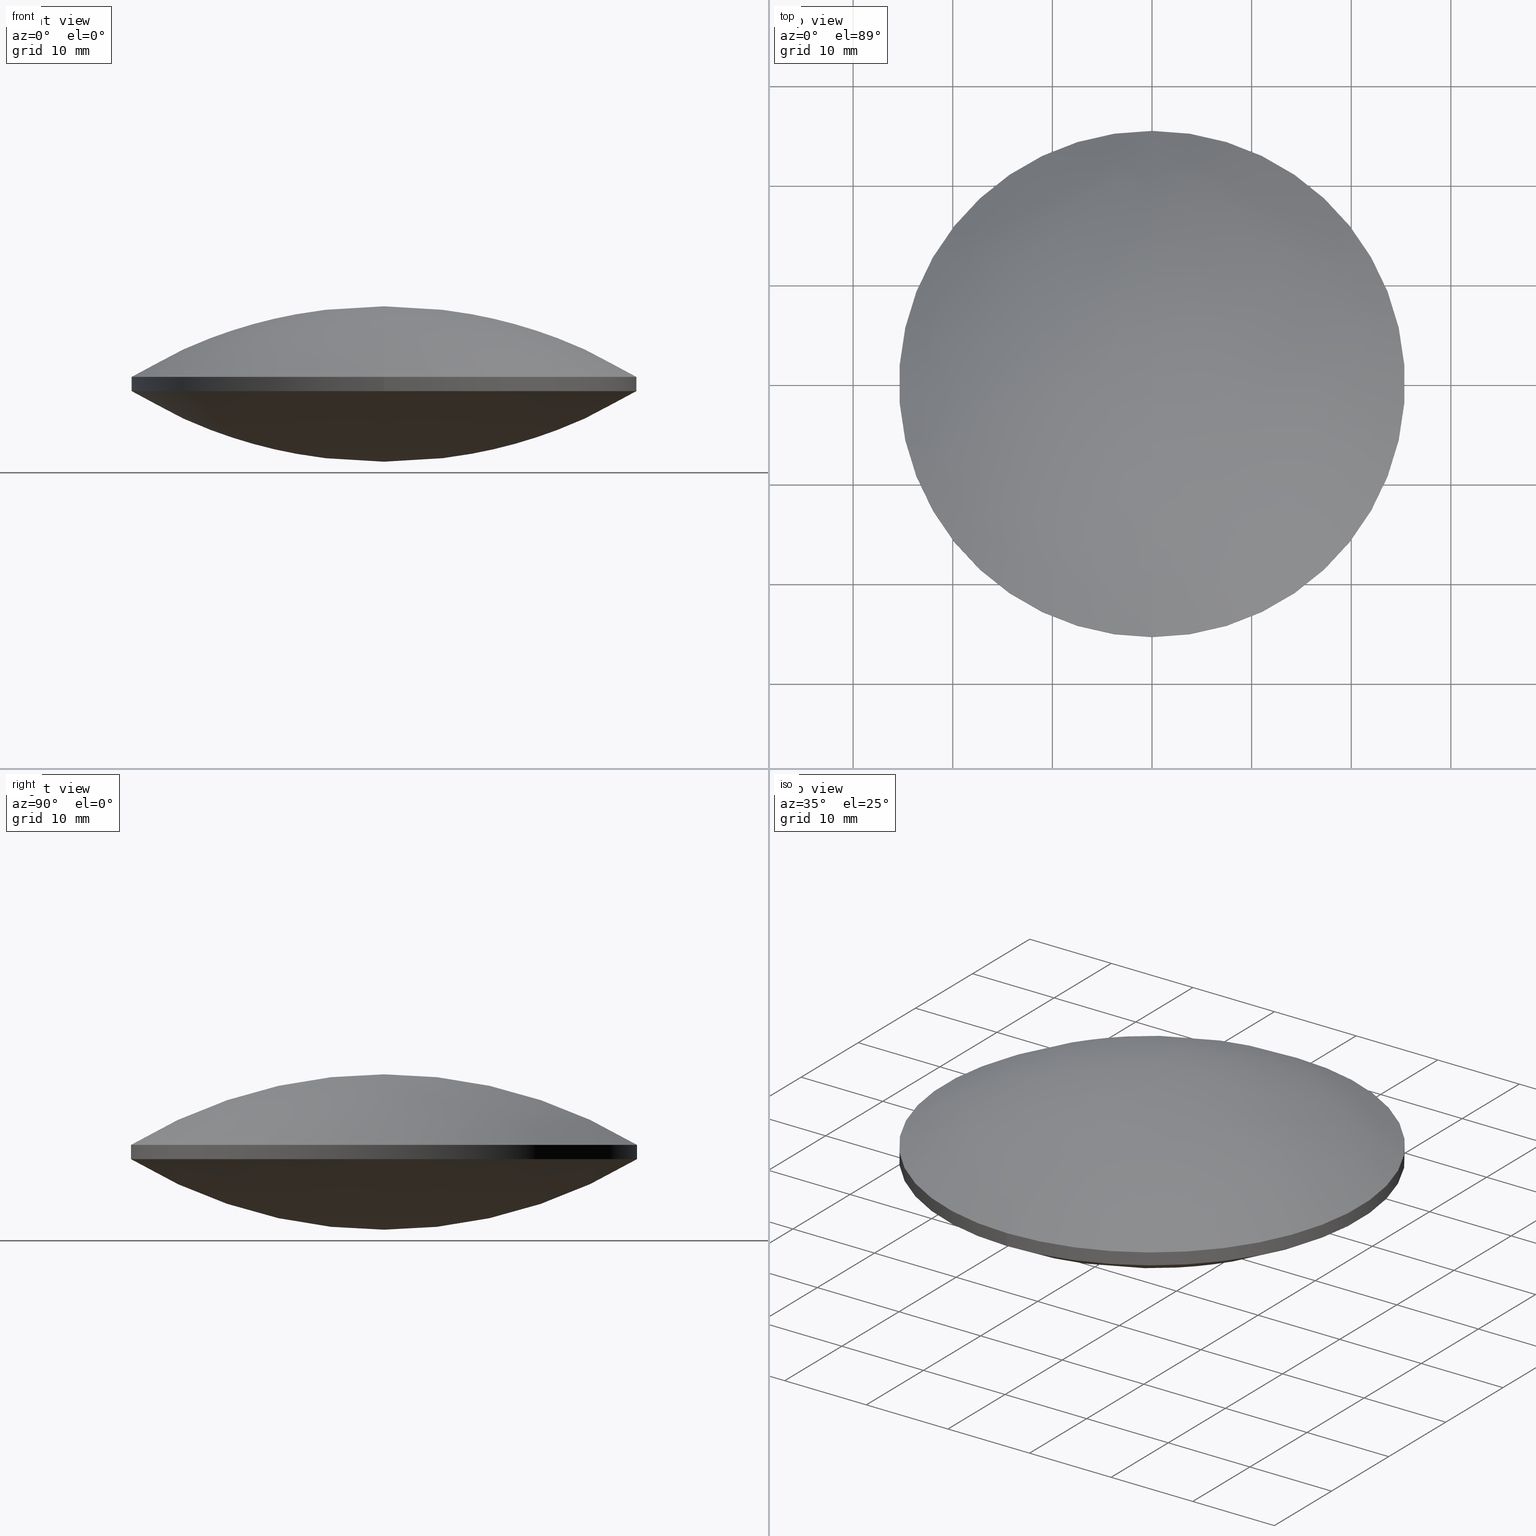
[diagram: canonical four-view strip — front | top / right | iso, engineering-drawing reading convention]
A machine part, canonical four-view strip (front | top / right | iso — engineering-drawing reading convention). The complete STEP part file that produces these views, byte-faithful:
ISO-10303-21;
HEADER;
FILE_DESCRIPTION (( 'STEP AP203' ),
    '1' );
FILE_NAME ('111-0504E BK7 bi-cx 50.8 F50.STEP',
    '2019-01-10T14:37:53',
    ( '' ),
    ( '' ),
    'SwSTEP 2.0',
    'SolidWorks 2017',
    '' );
FILE_SCHEMA (( 'CONFIG_CONTROL_DESIGN' ));
ENDSEC;

DATA;
#1 = CC_DESIGN_PERSON_AND_ORGANIZATION_ASSIGNMENT ( #242, #163, ( #181 ) ) ;
#2 = APPROVAL_STATUS ( 'not_yet_approved' ) ;
#3 = APPLICATION_CONTEXT ( 'configuration controlled 3d designs of mechanical parts and assemblies' ) ;
#4 = CARTESIAN_POINT ( 'NONE',  ( -21.81581761930886300, 25.67355596179357500, 2.202616643730818800 ) ) ;
#5 = CARTESIAN_POINT ( 'NONE',  ( -9.589711228101698700, -9.493655584627672900, 18.28236261593199400 ) ) ;
#6 = SECURITY_CLASSIFICATION ( '', '', #164 ) ;
#7 = DIRECTION ( 'NONE',  ( 0.0000000000000000000, -1.000000000000000000, -5.657475665639810500E-016 ) ) ;
#8 = APPROVAL_PERSON_ORGANIZATION ( #223, #221, #125 ) ;
#9 = ORIENTED_EDGE ( 'NONE', *, *, #82, .T. ) ;
#10 = AXIS2_PLACEMENT_3D ( 'NONE', #141, #162, #7 ) ;
#11 = CIRCLE ( 'NONE', #10, 49.06000000000000900 ) ;
#12 = CC_DESIGN_APPROVAL ( #221, ( #181 ) ) ;
#13 = DIRECTION ( 'NONE',  ( 1.797079892071900000E-031, 9.344115438189380100E-016, -1.000000000000000000 ) ) ;
#14 = DATE_AND_TIME ( #139, #47 ) ;
#15 = DIRECTION ( 'NONE',  ( -1.797079892071900000E-031, -9.344115438189380100E-016, 1.000000000000000000 ) ) ;
#16 =( BOUNDED_SURFACE ( )  B_SPLINE_SURFACE ( 3, 3, ( 
 ( #104, #144, #68, #36 ),
 ( #88, #5, #113, #53 ),
 ( #213, #111, #208, #148 ),
 ( #35, #85, #245, #4 ) ),
 .UNSPECIFIED., .F., .F., .T. ) 
 B_SPLINE_SURFACE_WITH_KNOTS ( ( 4, 4 ),
 ( 4, 4 ),
 ( 0.0000000000000000000, 1.000000000000000000 ),
 ( 0.0000000000000000000, 1.000000000000000000 ),
 .UNSPECIFIED. ) 
 GEOMETRIC_REPRESENTATION_ITEM ( )  RATIONAL_B_SPLINE_SURFACE ( (
 ( 1.000000000000000000, 0.9750407155908767900, 0.9750407155908767900, 1.000000000000000000),
 ( 0.9014285288715965200, 0.8789295178449928500, 0.8789295178449928500, 0.9014285288715965200),
 ( 0.9014285288715965200, 0.8789295178449928500, 0.8789295178449928500, 0.9014285288715965200),
 ( 1.000000000000000000, 0.9750407155908767900, 0.9750407155908767900, 1.000000000000000000) ) ) 
 REPRESENTATION_ITEM ( '' )  SURFACE ( )  );
#17 = CARTESIAN_POINT ( 'NONE',  ( 2.081668171172168500E-014, -9.493655584627669300, 18.28236261593198400 ) ) ;
#18 = CALENDAR_DATE ( 2019, 10, 1 ) ;
#19 = CARTESIAN_POINT ( 'NONE',  ( 2.081668171172168500E-014, 25.67355596179357800, 8.346125439660790200 ) ) ;
#20 = VECTOR ( 'NONE', #15, 1000.000000000000000 ) ;
#21 = CARTESIAN_POINT ( 'NONE',  ( 7.748170942791487500, 25.67355596179357800, 8.346125439660784900 ) ) ;
#22 =( BOUNDED_SURFACE ( )  B_SPLINE_SURFACE ( 3, 3, ( 
 ( #235, #118, #249, #59 ),
 ( #171, #219, #96, #17 ),
 ( #197, #136, #23, #222 ),
 ( #25, #238, #21, #19 ) ),
 .UNSPECIFIED., .F., .F., .T. ) 
 B_SPLINE_SURFACE_WITH_KNOTS ( ( 4, 4 ),
 ( 4, 4 ),
 ( 0.0000000000000000000, 1.000000000000000000 ),
 ( 0.0000000000000000000, 1.000000000000000000 ),
 .UNSPECIFIED. ) 
 GEOMETRIC_REPRESENTATION_ITEM ( )  RATIONAL_B_SPLINE_SURFACE ( (
 ( 1.000000000000000000, 0.9750407155908767900, 0.9750407155908767900, 1.000000000000000000),
 ( 0.9014285288715965200, 0.8789295178449928500, 0.8789295178449928500, 0.9014285288715965200),
 ( 0.9014285288715965200, 0.8789295178449928500, 0.8789295178449928500, 0.9014285288715965200),
 ( 1.000000000000000000, 0.9750407155908767900, 0.9750407155908767900, 1.000000000000000000) ) ) 
 REPRESENTATION_ITEM ( '' )  SURFACE ( )  );
#23 = CARTESIAN_POINT ( 'NONE',  ( 9.589711228101732500, 9.493655584627648000, 18.28236261593198700 ) ) ;
#24 = CARTESIAN_POINT ( 'NONE',  ( 0.0000000000000000000, 0.0000000000000000000, 0.0000000000000000000 ) ) ;
#25 = CARTESIAN_POINT ( 'NONE',  ( 21.81581761930887400, 25.67355596179357500, 2.202616643730809000 ) ) ;
#26 = CARTESIAN_POINT ( 'NONE',  ( 15.20625868226548100, -25.67355596179356400, 9.354131741978021000 ) ) ;
#27 = DIRECTION ( 'NONE',  ( 1.797079892071900000E-031, 9.344115438189380100E-016, -1.000000000000000000 ) ) ;
#28 = DIRECTION ( 'NONE',  ( 1.797079892071900000E-031, 9.344115438189380100E-016, -1.000000000000000000 ) ) ;
#29 = CARTESIAN_POINT ( 'NONE',  ( 7.748170942791468000, -25.67355596179356400, 7.253874560339198800 ) ) ;
#30 = PERSON ( 'UNSPECIFIED', 'UNSPECIFIED', 'UNSPECIFIED', ('UNSPECIFIED'), ('UNSPECIFIED'), ('UNSPECIFIED') ) ;
#31 = VERTEX_POINT ( 'NONE', #117 ) ;
#32 = CARTESIAN_POINT ( 'NONE',  ( 9.992007221626410800E-016, 3.552713678800502500E-015, 8.512891251377960000 ) ) ;
#33 = APPROVAL_ROLE ( '' ) ;
#34 = CC_DESIGN_DATE_AND_TIME_ASSIGNMENT ( #84, #128, ( #6 ) ) ;
#35 = CARTESIAN_POINT ( 'NONE',  ( 8.960409784571542900E-015, 25.67355596179357500, 8.346125439660790200 ) ) ;
#36 = CARTESIAN_POINT ( 'NONE',  ( -21.81581761930885600, -25.67355596179360000, 2.202616643730821400 ) ) ;
#37 = EDGE_CURVE ( 'NONE', #140, #131, #106, .T. ) ;
#38 = CARTESIAN_POINT ( 'NONE',  ( -3.552713678800500100E-015, -7.105427357601000300E-015, -33.46000000000000100 ) ) ;
#39 = ORIENTED_EDGE ( 'NONE', *, *, #49, .T. ) ;
#40 = EDGE_CURVE ( 'NONE', #140, #31, #76, .T. ) ;
#41 = LOCAL_TIME ( 16, 37, 53.00000000000000000, #91 ) ;
#42 = CC_DESIGN_SECURITY_CLASSIFICATION ( #6, ( #181 ) ) ;
#43 = CARTESIAN_POINT ( 'NONE',  ( -2.428612866367529600E-014, 9.493655584627690700, -2.682362615931977300 ) ) ;
#44 = CARTESIAN_POINT ( 'NONE',  ( 27.00087449267520900, 9.493655584627687100, 4.921299682598301800 ) ) ;
#45 = ORIENTED_EDGE ( 'NONE', *, *, #37, .T. ) ;
#46 =( NAMED_UNIT ( * ) PLANE_ANGLE_UNIT ( ) SI_UNIT ( $, .RADIAN. ) );
#47 = LOCAL_TIME ( 16, 37, 53.00000000000000000, #195 ) ;
#48 = CARTESIAN_POINT ( 'NONE',  ( 9.992007221626412800E-016, -25.39999999999999500, 7.087108748622016600 ) ) ;
#49 = EDGE_CURVE ( 'NONE', #107, #131, #146, .T. ) ;
#50 = APPLICATION_PROTOCOL_DEFINITION ( 'international standard', 'config_control_design', 1994, #225 ) ;
#51 = AXIS2_PLACEMENT_3D ( 'NONE', #253, #254, #123 ) ;
#52 = PERSON_AND_ORGANIZATION ( #30, #145 ) ;
#53 = CARTESIAN_POINT ( 'NONE',  ( -27.00087449267519400, -9.493655584627672900, 10.67870031740171100 ) ) ;
#54 = PERSON_AND_ORGANIZATION ( #30, #145 ) ;
#55 = PERSON_AND_ORGANIZATION_ROLE ( 'design_owner' ) ;
#56 = ORIENTED_EDGE ( 'NONE', *, *, #75, .F. ) ;
#57 = ADVANCED_FACE ( 'NONE', ( #80 ), #22, .T. ) ;
#58 = APPROVAL_PERSON_ORGANIZATION ( #248, #116, #33 ) ;
#59 = CARTESIAN_POINT ( 'NONE',  ( 2.081668171172168500E-014, -25.67355596179359600, 8.346125439660788500 ) ) ;
#60 = DATE_AND_TIME ( #191, #41 ) ;
#61 = DATE_AND_TIME ( #18, #158 ) ;
#62 = CARTESIAN_POINT ( 'NONE',  ( -18.82039396128811500, -9.493655584627637400, -0.08292850104565496800 ) ) ;
#63 = CARTESIAN_POINT ( 'NONE',  ( -7.748170942791488400, -25.67355596179356400, 7.253874560339210300 ) ) ;
#64 = APPROVAL ( #2, 'UNSPECIFIED' ) ;
#65 = CARTESIAN_POINT ( 'NONE',  ( -4.851826772789836000E-016, -9.493655584627635600, -2.682362615931988400 ) ) ;
#66 = FACE_OUTER_BOUND ( 'NONE', #196, .T. ) ;
#67 = APPROVAL_DATE_TIME ( #177, #116 ) ;
#68 = CARTESIAN_POINT ( 'NONE',  ( -15.20625868226547600, -25.67355596179360000, 6.245868258021976000 ) ) ;
#69 = PRODUCT ( '111-0504E BK7 bi-cx 50.8 F50', '111-0504E BK7 bi-cx 50.8 F50', '', ( #207 ) ) ;
#70 = PERSON_AND_ORGANIZATION ( #30, #145 ) ;
#71 = AXIS2_PLACEMENT_3D ( 'NONE', #24, #108, #241 ) ;
#72 = EDGE_LOOP ( 'NONE', ( #93, #45, #250, #230 ) ) ;
#73 = ADVANCED_FACE ( 'NONE', ( #66 ), #170, .T. ) ;
#74 = CARTESIAN_POINT ( 'NONE',  ( 9.992007221626412800E-016, 4.884981308350691100E-015, 7.087108748622040500 ) ) ;
#75 = EDGE_CURVE ( 'NONE', #131, #107, #101, .T. ) ;
#76 = CIRCLE ( 'NONE', #90, 25.39999999999999900 ) ;
#77 = CARTESIAN_POINT ( 'NONE',  ( -4.851826772789839900E-016, 9.493655584627687100, -2.682362615931980900 ) ) ;
#78 = DIRECTION ( 'NONE',  ( 0.0000000000000000000, -1.000000000000000000, -9.219986978616888100E-016 ) ) ;
#79 = CARTESIAN_POINT ( 'NONE',  ( 21.81581761930886300, 25.67355596179360700, 13.39738335626920200 ) ) ;
#80 = FACE_OUTER_BOUND ( 'NONE', #132, .T. ) ;
#81 = ORIENTED_EDGE ( 'NONE', *, *, #172, .F. ) ;
#82 = EDGE_CURVE ( 'NONE', #31, #140, #11, .T. ) ;
#83 = CARTESIAN_POINT ( 'NONE',  ( -7.748170942791488400, 25.67355596179361000, 7.253874560339238700 ) ) ;
#84 = DATE_AND_TIME ( #94, #201 ) ;
#85 = CARTESIAN_POINT ( 'NONE',  ( -7.748170942791460900, 25.67355596179357100, 8.346125439660792000 ) ) ;
#86 = CC_DESIGN_PERSON_AND_ORGANIZATION_ASSIGNMENT ( #154, #55, ( #69 ) ) ;
#87 = DIRECTION ( 'NONE',  ( 1.797079892071900000E-031, 9.344115438189380100E-016, -1.000000000000000000 ) ) ;
#88 = CARTESIAN_POINT ( 'NONE',  ( 1.193445632058646300E-014, -9.493655584627671100, 18.28236261593198400 ) ) ;
#89 = LINE ( 'NONE', #48, #220 ) ;
#90 = AXIS2_PLACEMENT_3D ( 'NONE', #74, #13, #169 ) ;
#91 = COORDINATED_UNIVERSAL_TIME_OFFSET ( 2, 0, .AHEAD. ) ;
#92 = LOCAL_TIME ( 16, 37, 53.00000000000000000, #166 ) ;
#93 = ORIENTED_EDGE ( 'NONE', *, *, #40, .F. ) ;
#94 = CALENDAR_DATE ( 2019, 10, 1 ) ;
#95 = DIRECTION ( 'NONE',  ( 0.0000000000000000000, -1.000000000000000000, 2.828737832819905300E-016 ) ) ;
#96 = CARTESIAN_POINT ( 'NONE',  ( 9.589711228101728900, -9.493655584627671100, 18.28236261593197300 ) ) ;
#97 = CARTESIAN_POINT ( 'NONE',  ( 9.992007221626410800E-016, -25.39999999999999500, 8.512891251377935100 ) ) ;
#98 = CC_DESIGN_APPROVAL ( #64, ( #6 ) ) ;
#99 = CARTESIAN_POINT ( 'NONE',  ( -2.775557561562891000E-014, -9.493655584627633800, -2.682362615931980900 ) ) ;
#100 = PRODUCT_DEFINITION ( 'UNKNOWN', '', #181, #109 ) ;
#101 = CIRCLE ( 'NONE', #137, 25.39999999999999900 ) ;
#102 = CARTESIAN_POINT ( 'NONE',  ( -18.82039396128811500, 9.493655584627690700, -0.08292850104564975000 ) ) ;
#103 = CARTESIAN_POINT ( 'NONE',  ( 9.589711228101712900, -9.493655584627637400, -2.682362615931988900 ) ) ;
#104 = CARTESIAN_POINT ( 'NONE',  ( 8.960409784571536500E-015, -25.67355596179360000, 8.346125439660790200 ) ) ;
#105 = CARTESIAN_POINT ( 'NONE',  ( 21.81581761930886300, -25.67355596179357100, 13.39738335626917400 ) ) ;
#106 = LINE ( 'NONE', #151, #20 ) ;
#107 = VERTEX_POINT ( 'NONE', #97 ) ;
#108 = DIRECTION ( 'NONE',  ( 0.0000000000000000000, 0.0000000000000000000, 1.000000000000000000 ) ) ;
#109 = DESIGN_CONTEXT ( 'detailed design', #3, 'design' ) ;
#110 = APPROVAL_DATE_TIME ( #61, #221 ) ;
#111 = CARTESIAN_POINT ( 'NONE',  ( -9.589711228101698700, 9.493655584627646200, 18.28236261593198700 ) ) ;
#112 = APPROVAL_STATUS ( 'not_yet_approved' ) ;
#113 = CARTESIAN_POINT ( 'NONE',  ( -18.82039396128808700, -9.493655584627672900, 15.68292850104567500 ) ) ;
#114 = UNCERTAINTY_MEASURE_WITH_UNIT (LENGTH_MEASURE( 1.000000000000000100E-005 ), #157, 'distance_accuracy_value', 'NONE');
#115 = FACE_OUTER_BOUND ( 'NONE', #234, .T. ) ;
#116 = APPROVAL ( #184, 'UNSPECIFIED' ) ;
#117 = CARTESIAN_POINT ( 'NONE',  ( 9.992007221626412800E-016, -25.39999999999999500, 7.087108748622016600 ) ) ;
#118 = CARTESIAN_POINT ( 'NONE',  ( 15.20625868226549200, -25.67355596179360000, 6.245868258021964400 ) ) ;
#119 = AXIS2_PLACEMENT_3D ( 'NONE', #38, #173, #95 ) ;
#120 = CARTESIAN_POINT ( 'NONE',  ( -27.00087449267522300, -9.493655584627639100, 4.921299682598308900 ) ) ;
#121 = FACE_OUTER_BOUND ( 'NONE', #176, .T. ) ;
#122 = CARTESIAN_POINT ( 'NONE',  ( -9.589711228101732500, 9.493655584627692400, -2.682362615931972900 ) ) ;
#123 = DIRECTION ( 'NONE',  ( 0.0000000000000000000, -1.000000000000000000, -9.219986978616888100E-016 ) ) ;
#124 = CARTESIAN_POINT ( 'NONE',  ( 4.109803591996917800E-015, 25.40000000000000200, 7.087108748622063600 ) ) ;
#125 = APPROVAL_ROLE ( '' ) ;
#126 = AXIS2_PLACEMENT_3D ( 'NONE', #179, #27, #78 ) ;
#127 = CARTESIAN_POINT ( 'NONE',  ( -2.428612866367529900E-014, 25.67355596179361000, 7.253874560339233400 ) ) ;
#128 = DATE_TIME_ROLE ( 'classification_date' ) ;
#129 = CC_DESIGN_APPROVAL ( #116, ( #100 ) ) ;
#130 = APPLICATION_PROTOCOL_DEFINITION ( 'international standard', 'config_control_design', 1994, #3 ) ;
#131 = VERTEX_POINT ( 'NONE', #255 ) ;
#132 = EDGE_LOOP ( 'NONE', ( #243, #56 ) ) ;
#133 = SHAPE_DEFINITION_REPRESENTATION ( #231, #190 ) ;
#134 = ORIENTED_EDGE ( 'NONE', *, *, #172, .T. ) ;
#135 = ADVANCED_FACE ( 'NONE', ( #121 ), #16, .T. ) ;
#136 = CARTESIAN_POINT ( 'NONE',  ( 18.82039396128811500, 9.493655584627648000, 15.68292850104565500 ) ) ;
#137 = AXIS2_PLACEMENT_3D ( 'NONE', #32, #28, #160 ) ;
#138 = CALENDAR_DATE ( 2019, 10, 1 ) ;
#139 = CALENDAR_DATE ( 2019, 10, 1 ) ;
#140 = VERTEX_POINT ( 'NONE', #124 ) ;
#141 = CARTESIAN_POINT ( 'NONE',  ( 3.552713678800500100E-015, -7.105427357601000300E-015, 49.06000000000000900 ) ) ;
#142 = APPROVAL_PERSON_ORGANIZATION ( #54, #64, #143 ) ;
#143 = APPROVAL_ROLE ( '' ) ;
#144 = CARTESIAN_POINT ( 'NONE',  ( -7.748170942791459100, -25.67355596179360000, 8.346125439660792000 ) ) ;
#145 = ORGANIZATION ( 'UNSPECIFIED', 'UNSPECIFIED', '' ) ;
#146 = CIRCLE ( 'NONE', #119, 49.06000000000000900 ) ;
#147 = ORIENTED_EDGE ( 'NONE', *, *, #37, .F. ) ;
#148 = CARTESIAN_POINT ( 'NONE',  ( -27.00087449267519400, 9.493655584627648000, 10.67870031740170600 ) ) ;
#149 = APPROVAL_DATE_TIME ( #60, #64 ) ;
#150 = MANIFOLD_SOLID_BREP ( 'Imported1', #193 ) ;
#151 = CARTESIAN_POINT ( 'NONE',  ( 4.109803591996917800E-015, 25.40000000000000200, 7.087108748622063600 ) ) ;
#152 = ORIENTED_EDGE ( 'NONE', *, *, #82, .F. ) ;
#153 = ADVANCED_FACE ( 'NONE', ( #200 ), #159, .T. ) ;
#154 = PERSON_AND_ORGANIZATION ( #30, #145 ) ;
#155 = CARTESIAN_POINT ( 'NONE',  ( -21.81581761930887000, -25.67355596179357100, 13.39738335626918600 ) ) ;
#156 = PRODUCT_RELATED_PRODUCT_CATEGORY ( 'detail', '', ( #69 ) ) ;
#157 =( LENGTH_UNIT ( ) NAMED_UNIT ( * ) SI_UNIT ( .MILLI., .METRE. ) );
#158 = LOCAL_TIME ( 16, 37, 53.00000000000000000, #218 ) ;
#159 = CYLINDRICAL_SURFACE ( 'NONE', #236, 25.39999999999999900 ) ;
#160 = DIRECTION ( 'NONE',  ( 0.0000000000000000000, -1.000000000000000000, -9.561467977824922300E-016 ) ) ;
#161 = CARTESIAN_POINT ( 'NONE',  ( 18.82039396128809400, -9.493655584627637400, -0.08292850104566795700 ) ) ;
#162 = DIRECTION ( 'NONE',  ( 1.000000000000000000, 1.772852460197800000E-031, -2.993131588200479900E-016 ) ) ;
#163 = PERSON_AND_ORGANIZATION_ROLE ( 'creator' ) ;
#164 = SECURITY_CLASSIFICATION_LEVEL ( 'unclassified' ) ;
#165 = CC_DESIGN_PERSON_AND_ORGANIZATION_ASSIGNMENT ( #204, #210, ( #100 ) ) ;
#166 = COORDINATED_UNIVERSAL_TIME_OFFSET ( 2, 0, .AHEAD. ) ;
#167 = CC_DESIGN_PERSON_AND_ORGANIZATION_ASSIGNMENT ( #70, #227, ( #181 ) ) ;
#168 =( BOUNDED_SURFACE ( )  B_SPLINE_SURFACE ( 3, 3, ( 
 ( #244, #29, #26, #105 ),
 ( #65, #103, #161, #206 ),
 ( #77, #180, #239, #44 ),
 ( #202, #203, #205, #79 ) ),
 .UNSPECIFIED., .F., .F., .F. ) 
 B_SPLINE_SURFACE_WITH_KNOTS ( ( 4, 4 ),
 ( 4, 4 ),
 ( 0.0000000000000000000, 1.000000000000000000 ),
 ( 0.0000000000000000000, 1.000000000000000000 ),
 .UNSPECIFIED. ) 
 GEOMETRIC_REPRESENTATION_ITEM ( )  RATIONAL_B_SPLINE_SURFACE ( (
 ( 1.000000000000000000, 0.9750407155908767900, 0.9750407155908767900, 1.000000000000000000),
 ( 0.9014285288715965200, 0.8789295178449928500, 0.8789295178449928500, 0.9014285288715965200),
 ( 0.9014285288715965200, 0.8789295178449928500, 0.8789295178449928500, 0.9014285288715965200),
 ( 1.000000000000000000, 0.9750407155908767900, 0.9750407155908767900, 1.000000000000000000) ) ) 
 REPRESENTATION_ITEM ( '' )  SURFACE ( )  );
#169 = DIRECTION ( 'NONE',  ( 0.0000000000000000000, -1.000000000000000000, -9.219986978616888100E-016 ) ) ;
#170 =( BOUNDED_SURFACE ( )  B_SPLINE_SURFACE ( 3, 3, ( 
 ( #155, #237, #63, #174 ),
 ( #120, #62, #199, #99 ),
 ( #252, #102, #122, #43 ),
 ( #224, #185, #83, #127 ) ),
 .UNSPECIFIED., .F., .F., .T. ) 
 B_SPLINE_SURFACE_WITH_KNOTS ( ( 4, 4 ),
 ( 4, 4 ),
 ( 0.0000000000000000000, 1.000000000000000000 ),
 ( 0.0000000000000000000, 1.000000000000000000 ),
 .UNSPECIFIED. ) 
 GEOMETRIC_REPRESENTATION_ITEM ( )  RATIONAL_B_SPLINE_SURFACE ( (
 ( 1.000000000000000000, 0.9750407155908767900, 0.9750407155908767900, 1.000000000000000000),
 ( 0.9014285288715965200, 0.8789295178449928500, 0.8789295178449928500, 0.9014285288715965200),
 ( 0.9014285288715965200, 0.8789295178449928500, 0.8789295178449928500, 0.9014285288715965200),
 ( 1.000000000000000000, 0.9750407155908767900, 0.9750407155908767900, 1.000000000000000000) ) ) 
 REPRESENTATION_ITEM ( '' )  SURFACE ( )  );
#171 = CARTESIAN_POINT ( 'NONE',  ( 27.00087449267521900, -9.493655584627671100, 10.67870031740169500 ) ) ;
#172 = EDGE_CURVE ( 'NONE', #107, #131, #209, .T. ) ;
#173 = DIRECTION ( 'NONE',  ( -1.000000000000000000, 8.864262300989019900E-032, 2.993131588200479900E-016 ) ) ;
#174 = CARTESIAN_POINT ( 'NONE',  ( -2.428612866367529900E-014, -25.67355596179356800, 7.253874560339205900 ) ) ;
#175 = CIRCLE ( 'NONE', #126, 25.39999999999999900 ) ;
#176 = EDGE_LOOP ( 'NONE', ( #81, #39 ) ) ;
#177 = DATE_AND_TIME ( #138, #92 ) ;
#178 =( NAMED_UNIT ( * ) SI_UNIT ( $, .STERADIAN. ) SOLID_ANGLE_UNIT ( ) );
#179 = CARTESIAN_POINT ( 'NONE',  ( 9.992007221626412800E-016, 4.884981308350691100E-015, 7.087108748622040500 ) ) ;
#180 = CARTESIAN_POINT ( 'NONE',  ( 9.589711228101712900, 9.493655584627687100, -2.682362615931981800 ) ) ;
#181 = PRODUCT_DEFINITION_FORMATION_WITH_SPECIFIED_SOURCE ( 'ANY', '', #69, .NOT_KNOWN. ) ;
#182 = EDGE_LOOP ( 'NONE', ( #189, #9 ) ) ;
#183 = PERSON_AND_ORGANIZATION_ROLE ( 'classification_officer' ) ;
#184 = APPROVAL_STATUS ( 'not_yet_approved' ) ;
#185 = CARTESIAN_POINT ( 'NONE',  ( -15.20625868226549600, 25.67355596179361000, 9.354131741978056500 ) ) ;
#186 = CARTESIAN_POINT ( 'NONE',  ( 9.992007221626412800E-016, 4.884981308350691100E-015, 7.087108748622040500 ) ) ;
#187 = CC_DESIGN_DATE_AND_TIME_ASSIGNMENT ( #14, #229, ( #100 ) ) ;
#188 = DIRECTION ( 'NONE',  ( 0.0000000000000000000, -1.000000000000000000, -9.219986978616888100E-016 ) ) ;
#189 = ORIENTED_EDGE ( 'NONE', *, *, #40, .T. ) ;
#190 = ADVANCED_BREP_SHAPE_REPRESENTATION ( '111-0504E BK7 bi-cx 50.8 F50', ( #150, #71 ), #251 ) ;
#191 = CALENDAR_DATE ( 2019, 10, 1 ) ;
#192 = CC_DESIGN_PERSON_AND_ORGANIZATION_ASSIGNMENT ( #52, #183, ( #6 ) ) ;
#193 = CLOSED_SHELL ( 'NONE', ( #217, #135, #153, #73, #247, #57 ) ) ;
#194 = COORDINATED_UNIVERSAL_TIME_OFFSET ( 2, 0, .AHEAD. ) ;
#195 = COORDINATED_UNIVERSAL_TIME_OFFSET ( 2, 0, .AHEAD. ) ;
#196 = EDGE_LOOP ( 'NONE', ( #152, #246 ) ) ;
#197 = CARTESIAN_POINT ( 'NONE',  ( 27.00087449267522300, 9.493655584627649800, 10.67870031740169500 ) ) ;
#198 = EDGE_CURVE ( 'NONE', #31, #140, #175, .T. ) ;
#199 = CARTESIAN_POINT ( 'NONE',  ( -9.589711228101732500, -9.493655584627633800, -2.682362615931975600 ) ) ;
#200 = FACE_OUTER_BOUND ( 'NONE', #72, .T. ) ;
#201 = LOCAL_TIME ( 16, 37, 53.00000000000000000, #194 ) ;
#202 = CARTESIAN_POINT ( 'NONE',  ( 2.902263658877685300E-016, 25.67355596179361000, 7.253874560339227200 ) ) ;
#203 = CARTESIAN_POINT ( 'NONE',  ( 7.748170942791468000, 25.67355596179361000, 7.253874560339226300 ) ) ;
#204 = PERSON_AND_ORGANIZATION ( #30, #145 ) ;
#205 = CARTESIAN_POINT ( 'NONE',  ( 15.20625868226548100, 25.67355596179361000, 9.354131741978045900 ) ) ;
#206 = CARTESIAN_POINT ( 'NONE',  ( 27.00087449267520500, -9.493655584627639100, 4.921299682598292900 ) ) ;
#207 = MECHANICAL_CONTEXT ( 'NONE', #225, 'mechanical' ) ;
#208 = CARTESIAN_POINT ( 'NONE',  ( -18.82039396128808700, 9.493655584627646200, 15.68292850104566900 ) ) ;
#209 = CIRCLE ( 'NONE', #232, 25.39999999999999900 ) ;
#210 = PERSON_AND_ORGANIZATION_ROLE ( 'creator' ) ;
#211 = DIRECTION ( 'NONE',  ( -1.797079892071900000E-031, -9.344115438189380100E-016, 1.000000000000000000 ) ) ;
#212 = CARTESIAN_POINT ( 'NONE',  ( 9.992007221626410800E-016, 3.552713678800502500E-015, 8.512891251377960000 ) ) ;
#213 = CARTESIAN_POINT ( 'NONE',  ( 1.193445632058646500E-014, 9.493655584627649800, 18.28236261593198400 ) ) ;
#214 = CYLINDRICAL_SURFACE ( 'NONE', #51, 25.39999999999999900 ) ;
#215 = ORIENTED_EDGE ( 'NONE', *, *, #226, .T. ) ;
#216 = FACE_OUTER_BOUND ( 'NONE', #182, .T. ) ;
#217 = ADVANCED_FACE ( 'NONE', ( #216 ), #168, .T. ) ;
#218 = COORDINATED_UNIVERSAL_TIME_OFFSET ( 2, 0, .AHEAD. ) ;
#219 = CARTESIAN_POINT ( 'NONE',  ( 18.82039396128811100, -9.493655584627671100, 15.68292850104566000 ) ) ;
#220 = VECTOR ( 'NONE', #240, 1000.000000000000000 ) ;
#221 = APPROVAL ( #112, 'UNSPECIFIED' ) ;
#222 = CARTESIAN_POINT ( 'NONE',  ( 2.428612866367529600E-014, 9.493655584627651600, 18.28236261593198400 ) ) ;
#223 = PERSON_AND_ORGANIZATION ( #30, #145 ) ;
#224 = CARTESIAN_POINT ( 'NONE',  ( -21.81581761930887000, 25.67355596179360700, 13.39738335626921500 ) ) ;
#225 = APPLICATION_CONTEXT ( 'configuration controlled 3d designs of mechanical parts and assemblies' ) ;
#226 = EDGE_CURVE ( 'NONE', #31, #107, #89, .T. ) ;
#227 = PERSON_AND_ORGANIZATION_ROLE ( 'design_supplier' ) ;
#228 = DIRECTION ( 'NONE',  ( 0.0000000000000000000, -1.000000000000000000, -9.561467977824922300E-016 ) ) ;
#229 = DATE_TIME_ROLE ( 'creation_date' ) ;
#230 = ORIENTED_EDGE ( 'NONE', *, *, #226, .F. ) ;
#231 = PRODUCT_DEFINITION_SHAPE ( 'NONE', 'NONE',  #100 ) ;
#232 = AXIS2_PLACEMENT_3D ( 'NONE', #212, #87, #228 ) ;
#233 = ORIENTED_EDGE ( 'NONE', *, *, #198, .F. ) ;
#234 = EDGE_LOOP ( 'NONE', ( #147, #233, #215, #134 ) ) ;
#235 = CARTESIAN_POINT ( 'NONE',  ( 21.81581761930886600, -25.67355596179360000, 2.202616643730809000 ) ) ;
#236 = AXIS2_PLACEMENT_3D ( 'NONE', #186, #211, #188 ) ;
#237 = CARTESIAN_POINT ( 'NONE',  ( -15.20625868226549600, -25.67355596179356400, 9.354131741978029900 ) ) ;
#238 = CARTESIAN_POINT ( 'NONE',  ( 15.20625868226549700, 25.67355596179357100, 6.245868258021966200 ) ) ;
#239 = CARTESIAN_POINT ( 'NONE',  ( 18.82039396128809700, 9.493655584627687100, -0.08292850104566100400 ) ) ;
#240 = DIRECTION ( 'NONE',  ( -1.797079892071900000E-031, -9.344115438189380100E-016, 1.000000000000000000 ) ) ;
#241 = DIRECTION ( 'NONE',  ( 1.000000000000000000, 0.0000000000000000000, 0.0000000000000000000 ) ) ;
#242 = PERSON_AND_ORGANIZATION ( #30, #145 ) ;
#243 = ORIENTED_EDGE ( 'NONE', *, *, #49, .F. ) ;
#244 = CARTESIAN_POINT ( 'NONE',  ( 2.902263658877685300E-016, -25.67355596179356800, 7.253874560339198800 ) ) ;
#245 = CARTESIAN_POINT ( 'NONE',  ( -15.20625868226548000, 25.67355596179357100, 6.245868258021974200 ) ) ;
#246 = ORIENTED_EDGE ( 'NONE', *, *, #198, .T. ) ;
#247 = ADVANCED_FACE ( 'NONE', ( #115 ), #214, .T. ) ;
#248 = PERSON_AND_ORGANIZATION ( #30, #145 ) ;
#249 = CARTESIAN_POINT ( 'NONE',  ( 7.748170942791485800, -25.67355596179359600, 8.346125439660783100 ) ) ;
#250 = ORIENTED_EDGE ( 'NONE', *, *, #75, .T. ) ;
#251 =( GEOMETRIC_REPRESENTATION_CONTEXT ( 3 ) GLOBAL_UNCERTAINTY_ASSIGNED_CONTEXT ( ( #114 ) ) GLOBAL_UNIT_ASSIGNED_CONTEXT ( ( #157, #46, #178 ) ) REPRESENTATION_CONTEXT ( 'NONE', 'WORKASPACE' ) );
#252 = CARTESIAN_POINT ( 'NONE',  ( -27.00087449267522300, 9.493655584627687100, 4.921299682598312400 ) ) ;
#253 = CARTESIAN_POINT ( 'NONE',  ( 9.992007221626412800E-016, 4.884981308350691100E-015, 7.087108748622040500 ) ) ;
#254 = DIRECTION ( 'NONE',  ( -1.797079892071900000E-031, -9.344115438189380100E-016, 1.000000000000000000 ) ) ;
#255 = CARTESIAN_POINT ( 'NONE',  ( 4.109803591996917800E-015, 25.40000000000000200, 8.512891251377984900 ) ) ;
ENDSEC;
END-ISO-10303-21;
